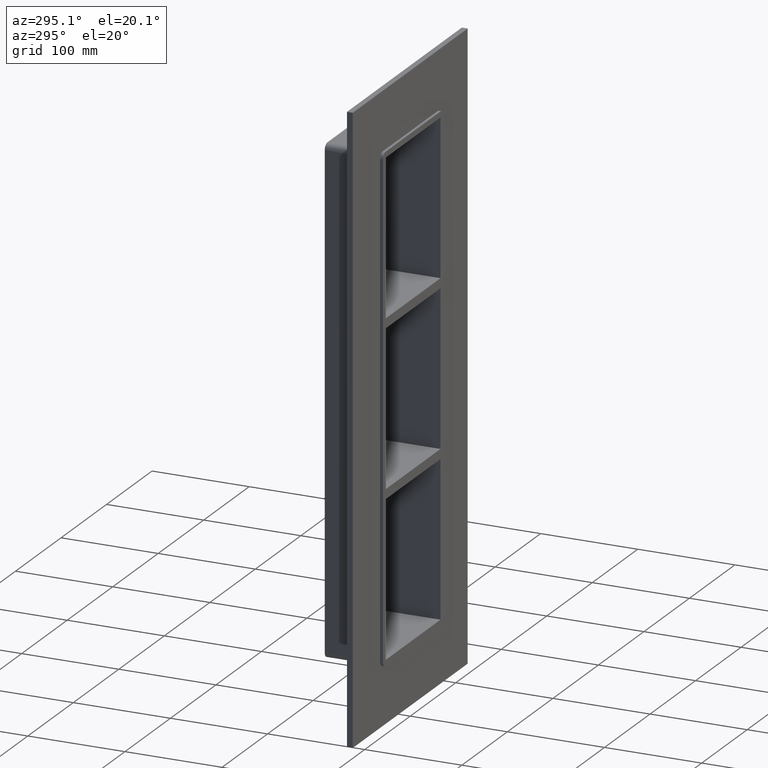
[diagram: clean part render]
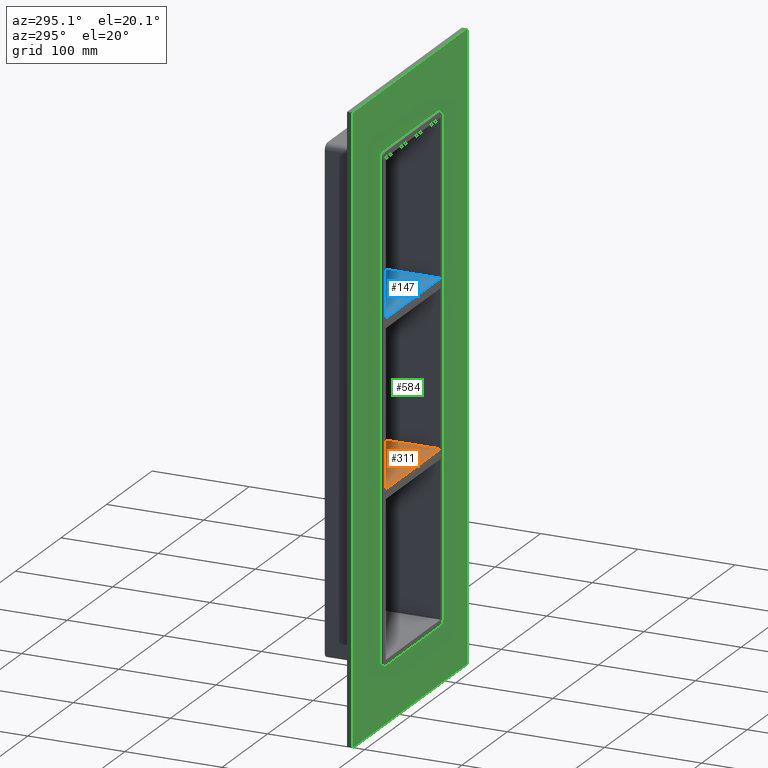
[diagram: same view with three faces highlighted in distinct colors, each labeled with its STEP entity id]
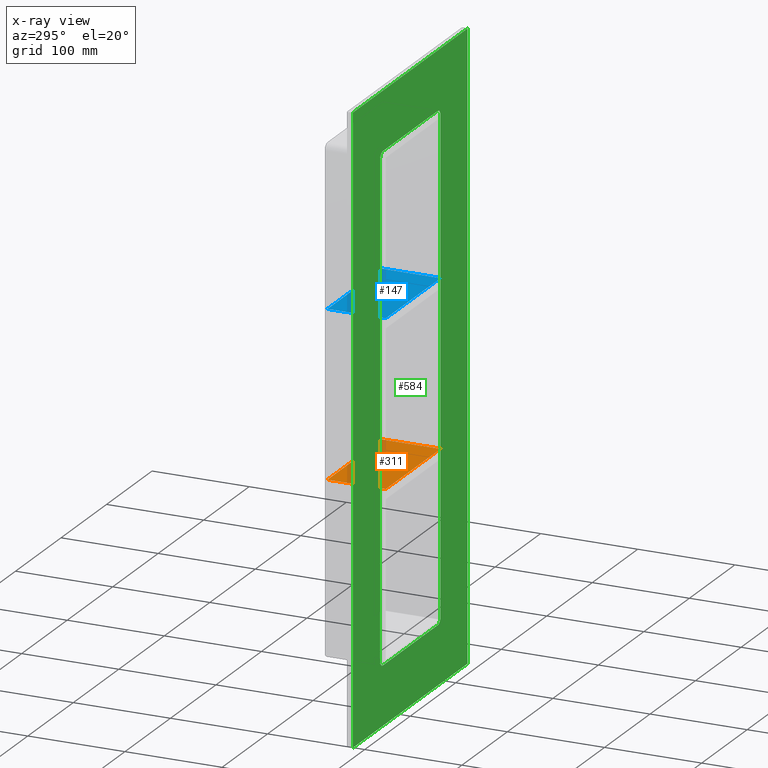
[diagram: x-ray of the same camera — body ghosted, the three highlighted faces saturated]
A machine part, auxiliary view with three faces highlighted in distinct colors.
The next image is the same camera in x-ray (body ghosted, the three faces saturated) — at least one of them is partly hidden behind the body in this view.
Their STEP definitions:

[orange] entity #311 — the highlighted planar face has unit normal (0, 0, 1).
#185=CARTESIAN_POINT('',(60.249999999999908,57.0,-79.749999999999943));
#186=VERTEX_POINT('',#185);
#193=CARTESIAN_POINT('',(60.249999999999908,-3.0,-79.749999999999943));
#194=VERTEX_POINT('',#193);
#195=CARTESIAN_POINT('',(60.25,57.000000000000007,-79.749999999999943));
#196=DIRECTION('',(0.0,-1.0,0.0));
#197=VECTOR('',#196,60.000000000000007);
#198=LINE('',#195,#197);
#199=EDGE_CURVE('',#186,#194,#198,.T.);
#281=CARTESIAN_POINT('',(-60.249999999999694,-3.0,-79.749999999999943));
#282=DIRECTION('',(0.0,0.0,1.0));
#283=DIRECTION('',(1.0,0.0,0.0));
#284=AXIS2_PLACEMENT_3D('',#281,#282,#283);
#285=PLANE('',#284);
#286=CARTESIAN_POINT('',(-60.249999999999694,-3.0,-79.749999999999943));
#287=VERTEX_POINT('',#286);
#288=CARTESIAN_POINT('',(-60.249999999999694,-3.0,-79.749999999999943));
#289=DIRECTION('',(1.0,0.0,0.0));
#290=VECTOR('',#289,120.4999999999996);
#291=LINE('',#288,#290);
#292=EDGE_CURVE('',#287,#194,#291,.T.);
#293=ORIENTED_EDGE('',*,*,#292,.T.);
#294=ORIENTED_EDGE('',*,*,#199,.F.);
#295=CARTESIAN_POINT('',(-60.249999999999694,57.0,-79.749999999999943));
#296=VERTEX_POINT('',#295);
#297=CARTESIAN_POINT('',(-60.249999999999694,57.0,-79.749999999999943));
#298=DIRECTION('',(1.0,0.0,0.0));
#299=VECTOR('',#298,120.4999999999996);
#300=LINE('',#297,#299);
#301=EDGE_CURVE('',#296,#186,#300,.T.);
#302=ORIENTED_EDGE('',*,*,#301,.F.);
#303=CARTESIAN_POINT('',(-60.249999999999993,-3.0,-79.749999999999943));
#304=DIRECTION('',(0.0,1.0,0.0));
#305=VECTOR('',#304,60.000000000000007);
#306=LINE('',#303,#305);
#307=EDGE_CURVE('',#287,#296,#306,.T.);
#308=ORIENTED_EDGE('',*,*,#307,.F.);
#309=EDGE_LOOP('',(#293,#294,#302,#308));
#310=FACE_OUTER_BOUND('',#309,.T.);
#311=ADVANCED_FACE('',(#310),#285,.T.);

[blue] entity #147 — the highlighted planar face has unit normal (0, 0, 1).
#108=CARTESIAN_POINT('',(-60.249999999999694,-3.0,89.750000000000085));
#109=DIRECTION('',(0.0,0.0,1.0));
#110=DIRECTION('',(1.0,0.0,0.0));
#111=AXIS2_PLACEMENT_3D('',#108,#109,#110);
#112=PLANE('',#111);
#113=CARTESIAN_POINT('',(-60.249999999999694,-3.0,89.750000000000085));
#114=VERTEX_POINT('',#113);
#115=CARTESIAN_POINT('',(60.249999999999908,-3.0,89.750000000000085));
#116=VERTEX_POINT('',#115);
#117=CARTESIAN_POINT('',(-60.249999999999694,-3.0,89.750000000000085));
#118=DIRECTION('',(1.0,0.0,0.0));
#119=VECTOR('',#118,120.4999999999996);
#120=LINE('',#117,#119);
#121=EDGE_CURVE('',#114,#116,#120,.T.);
#122=ORIENTED_EDGE('',*,*,#121,.T.);
#123=CARTESIAN_POINT('',(60.249999999999908,57.0,89.750000000000085));
#124=VERTEX_POINT('',#123);
#125=CARTESIAN_POINT('',(60.25,57.000000000000007,89.750000000000085));
#126=DIRECTION('',(0.0,-1.0,0.0));
#127=VECTOR('',#126,60.000000000000007);
#128=LINE('',#125,#127);
#129=EDGE_CURVE('',#124,#116,#128,.T.);
#130=ORIENTED_EDGE('',*,*,#129,.F.);
#131=CARTESIAN_POINT('',(-60.249999999999694,57.0,89.750000000000085));
#132=VERTEX_POINT('',#131);
#133=CARTESIAN_POINT('',(-60.249999999999694,57.0,89.750000000000085));
#134=DIRECTION('',(1.0,0.0,0.0));
#135=VECTOR('',#134,120.4999999999996);
#136=LINE('',#133,#135);
#137=EDGE_CURVE('',#132,#124,#136,.T.);
#138=ORIENTED_EDGE('',*,*,#137,.F.);
#139=CARTESIAN_POINT('',(-60.249999999999993,-3.0,89.750000000000085));
#140=DIRECTION('',(0.0,1.0,0.0));
#141=VECTOR('',#140,60.000000000000007);
#142=LINE('',#139,#141);
#143=EDGE_CURVE('',#114,#132,#142,.T.);
#144=ORIENTED_EDGE('',*,*,#143,.F.);
#145=EDGE_LOOP('',(#122,#130,#138,#144));
#146=FACE_OUTER_BOUND('',#145,.T.);
#147=ADVANCED_FACE('',(#146),#112,.T.);

[green] entity #584 — the highlighted planar face has unit normal (0, 1, 0).
#475=CARTESIAN_POINT('',(0.0,0.0,0.0));
#476=DIRECTION('',(0.0,1.0,0.0));
#477=DIRECTION('',(0.0,0.0,1.0));
#478=AXIS2_PLACEMENT_3D('',#475,#476,#477);
#479=PLANE('',#478);
#480=CARTESIAN_POINT('',(-126.25,0.0,315.25000000000006));
#481=VERTEX_POINT('',#480);
#482=CARTESIAN_POINT('',(126.25,0.0,315.25000000000006));
#483=VERTEX_POINT('',#482);
#484=CARTESIAN_POINT('',(-126.25,0.0,315.25000000000006));
#485=DIRECTION('',(1.0,0.0,0.0));
#486=VECTOR('',#485,252.5);
#487=LINE('',#484,#486);
#488=EDGE_CURVE('',#481,#483,#487,.T.);
#489=ORIENTED_EDGE('',*,*,#488,.F.);
#490=CARTESIAN_POINT('',(-126.25,0.0,-315.25000000000006));
#491=VERTEX_POINT('',#490);
#492=CARTESIAN_POINT('',(-126.25,0.0,-315.25000000000006));
#493=DIRECTION('',(0.0,0.0,1.0));
#494=VECTOR('',#493,630.50000000000011);
#495=LINE('',#492,#494);
#496=EDGE_CURVE('',#491,#481,#495,.T.);
#497=ORIENTED_EDGE('',*,*,#496,.F.);
#498=CARTESIAN_POINT('',(126.25,0.0,-315.25000000000006));
#499=VERTEX_POINT('',#498);
#500=CARTESIAN_POINT('',(126.25,0.0,-315.25000000000006));
#501=DIRECTION('',(-1.0,0.0,0.0));
#502=VECTOR('',#501,252.5);
#503=LINE('',#500,#502);
#504=EDGE_CURVE('',#499,#491,#503,.T.);
#505=ORIENTED_EDGE('',*,*,#504,.F.);
#506=CARTESIAN_POINT('',(126.25,0.0,315.25000000000006));
#507=DIRECTION('',(0.0,0.0,-1.0));
#508=VECTOR('',#507,630.50000000000011);
#509=LINE('',#506,#508);
#510=EDGE_CURVE('',#483,#499,#509,.T.);
#511=ORIENTED_EDGE('',*,*,#510,.F.);
#512=EDGE_LOOP('',(#489,#497,#505,#511));
#513=FACE_OUTER_BOUND('',#512,.T.);
#514=CARTESIAN_POINT('',(-66.25,0.0,-249.24999999999997));
#515=VERTEX_POINT('',#514);
#516=CARTESIAN_POINT('',(-60.25,0.0,-255.25));
#517=VERTEX_POINT('',#516);
#518=CARTESIAN_POINT('',(-60.25,0.0,-249.24999999999997));
#519=DIRECTION('',(0.0,-1.0,0.0));
#520=DIRECTION('',(-0.707106781186546,0.0,-0.707106781186549));
#521=AXIS2_PLACEMENT_3D('',#518,#519,#520);
#522=CIRCLE('',#521,6.000000000000001);
#523=EDGE_CURVE('',#515,#517,#522,.T.);
#524=ORIENTED_EDGE('',*,*,#523,.F.);
#525=CARTESIAN_POINT('',(-66.25,0.0,249.25000000000006));
#526=VERTEX_POINT('',#525);
#527=CARTESIAN_POINT('',(-66.25,0.0,249.25));
#528=DIRECTION('',(0.0,0.0,-1.0));
#529=VECTOR('',#528,498.5);
#530=LINE('',#527,#529);
#531=EDGE_CURVE('',#526,#515,#530,.T.);
#532=ORIENTED_EDGE('',*,*,#531,.F.);
#533=CARTESIAN_POINT('',(-60.25,0.0,255.25000000000006));
#534=VERTEX_POINT('',#533);
#535=CARTESIAN_POINT('',(-60.25,0.0,249.25000000000006));
#536=DIRECTION('',(0.0,-1.0,0.0));
#537=DIRECTION('',(-0.707106781186546,0.0,0.707106781186549));
#538=AXIS2_PLACEMENT_3D('',#535,#536,#537);
#539=CIRCLE('',#538,6.000000000000001);
#540=EDGE_CURVE('',#534,#526,#539,.T.);
#541=ORIENTED_EDGE('',*,*,#540,.F.);
#542=CARTESIAN_POINT('',(60.25,0.0,255.25000000000006));
#543=VERTEX_POINT('',#542);
#544=CARTESIAN_POINT('',(60.25,0.0,255.25000000000006));
#545=DIRECTION('',(-1.0,0.0,0.0));
#546=VECTOR('',#545,120.5);
#547=LINE('',#544,#546);
#548=EDGE_CURVE('',#543,#534,#547,.T.);
#549=ORIENTED_EDGE('',*,*,#548,.F.);
#550=CARTESIAN_POINT('',(66.25,0.0,249.25000000000006));
#551=VERTEX_POINT('',#550);
#552=CARTESIAN_POINT('',(60.25,0.0,249.25000000000006));
#553=DIRECTION('',(0.0,-1.0,0.0));
#554=DIRECTION('',(0.707106781186546,0.0,0.707106781186549));
#555=AXIS2_PLACEMENT_3D('',#552,#553,#554);
#556=CIRCLE('',#555,6.000000000000001);
#557=EDGE_CURVE('',#551,#543,#556,.T.);
#558=ORIENTED_EDGE('',*,*,#557,.F.);
#559=CARTESIAN_POINT('',(66.25,0.0,-249.24999999999997));
#560=VERTEX_POINT('',#559);
#561=CARTESIAN_POINT('',(66.25,0.0,-249.24999999999997));
#562=DIRECTION('',(0.0,0.0,1.0));
#563=VECTOR('',#562,498.5);
#564=LINE('',#561,#563);
#565=EDGE_CURVE('',#560,#551,#564,.T.);
#566=ORIENTED_EDGE('',*,*,#565,.F.);
#567=CARTESIAN_POINT('',(60.25,0.0,-255.25));
#568=VERTEX_POINT('',#567);
#569=CARTESIAN_POINT('',(60.25,0.0,-249.24999999999997));
#570=DIRECTION('',(0.0,-1.0,0.0));
#571=DIRECTION('',(0.707106781186546,0.0,-0.707106781186549));
#572=AXIS2_PLACEMENT_3D('',#569,#570,#571);
#573=CIRCLE('',#572,6.000000000000001);
#574=EDGE_CURVE('',#568,#560,#573,.T.);
#575=ORIENTED_EDGE('',*,*,#574,.F.);
#576=CARTESIAN_POINT('',(-60.25,0.0,-255.25));
#577=DIRECTION('',(1.0,0.0,0.0));
#578=VECTOR('',#577,120.5);
#579=LINE('',#576,#578);
#580=EDGE_CURVE('',#517,#568,#579,.T.);
#581=ORIENTED_EDGE('',*,*,#580,.F.);
#582=EDGE_LOOP('',(#524,#532,#541,#549,#558,#566,#575,#581));
#583=FACE_BOUND('',#582,.T.);
#584=ADVANCED_FACE('',(#513,#583),#479,.F.);